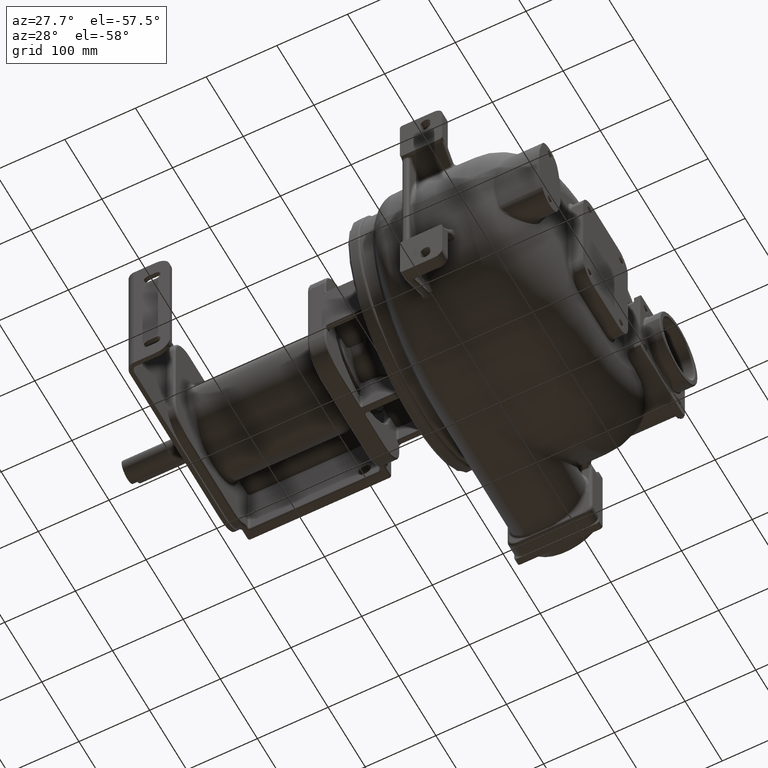
[diagram: clean part render]
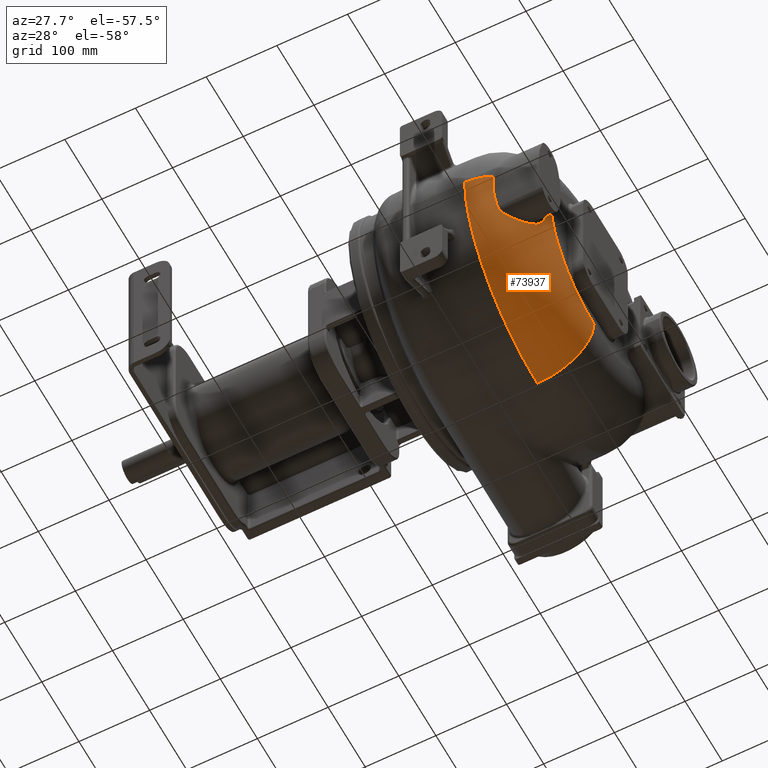
[diagram: same view with one face highlighted and labeled with its STEP entity id]
A machine part, auxiliary view. The second image highlights one B-rep face of the part: STEP entity #73937.
In plain terms, the highlighted toroidal blend (fillet) surface has major radius 116 mm and minor (blend) radius 80 mm.
Its self-contained STEP definition (entity closure, byte-faithful):
#21613=CARTESIAN_POINT('',(5.E1,2.07E2,-1.23E2));
#21614=DIRECTION('',(0.E0,1.E0,0.E0));
#21615=DIRECTION('',(1.E0,0.E0,0.E0));
#21616=AXIS2_PLACEMENT_3D('',#21613,#21614,#21615);
#21631=CARTESIAN_POINT('',(1.3E2,2.07E2,-7.E0));
#21632=DIRECTION('',(1.E0,0.E0,0.E0));
#21633=DIRECTION('',(0.E0,-1.E0,0.E0));
#21634=AXIS2_PLACEMENT_3D('',#21631,#21632,#21633);
#21704=CARTESIAN_POINT('',(5.E1,9.1E1,-7.E0));
#21705=DIRECTION('',(0.E0,0.E0,-1.E0));
#21706=DIRECTION('',(1.E0,0.E0,0.E0));
#21707=AXIS2_PLACEMENT_3D('',#21704,#21705,#21706);
#21709=CARTESIAN_POINT('',(5.E1,9.1E1,-7.E0));
#21710=DIRECTION('',(0.E0,0.E0,-1.E0));
#21711=DIRECTION('',(4.543358366778E-1,-8.908304819158E-1,0.E0));
#21712=AXIS2_PLACEMENT_3D('',#21709,#21710,#21711);
#21714=CARTESIAN_POINT('',(8.670701543075E1,2.914157496928E1,
-6.501645246094E1));
#21715=CARTESIAN_POINT('',(8.661662273888E1,2.882639051811E1,
-6.420071827394E1));
#21716=CARTESIAN_POINT('',(8.644287761704E1,2.821230472319E1,
-6.256663715477E1));
#21717=CARTESIAN_POINT('',(8.620365766661E1,2.733996422774E1,
-6.010926433028E1));
#21718=CARTESIAN_POINT('',(8.598597235908E1,2.651569812819E1,
-5.764544773710E1));
#21719=CARTESIAN_POINT('',(8.579003709320E1,2.573904832277E1,
-5.517539775021E1));
#21720=CARTESIAN_POINT('',(8.561608215289E1,2.500957024017E1,
-5.269915403584E1));
#21721=CARTESIAN_POINT('',(8.546439500092E1,2.432690895946E1,
-5.021672821328E1));
#21722=CARTESIAN_POINT('',(8.533521820968E1,2.369075187151E1,
-4.772813957707E1));
#21723=CARTESIAN_POINT('',(8.522852233630E1,2.310074867115E1,
-4.523357906725E1));
#21724=CARTESIAN_POINT('',(8.514435035639E1,2.255663242452E1,
-4.273320117209E1));
#21725=CARTESIAN_POINT('',(8.508276703704E1,2.205817683146E1,
-4.022703006857E1));
#21726=CARTESIAN_POINT('',(8.504386471154E1,2.160517528959E1,
-3.771476011627E1));
#21727=CARTESIAN_POINT('',(8.502781923528E1,2.119754383681E1,
-3.519610779950E1));
#21728=CARTESIAN_POINT('',(8.503470939250E1,2.083522014494E1,
-3.267075285451E1));
#21729=CARTESIAN_POINT('',(8.506434780851E1,2.051808688759E1,
-3.013836539653E1));
#21730=CARTESIAN_POINT('',(8.511665054046E1,2.024614889364E1,
-2.759856009930E1));
#21731=CARTESIAN_POINT('',(8.519156836682E1,2.001952589652E1,
-2.505113514582E1));
#21732=CARTESIAN_POINT('',(8.528907612696E1,1.983843885488E1,
-2.249614628798E1));
#21733=CARTESIAN_POINT('',(8.540922873612E1,1.970320176287E1,
-1.993364866578E1));
#21734=CARTESIAN_POINT('',(8.555190289615E1,1.961408609278E1,
-1.736351973639E1));
#21735=CARTESIAN_POINT('',(8.571681914174E1,1.957134323937E1,
-1.478547104774E1));
#21736=CARTESIAN_POINT('',(8.590378685638E1,1.957534563730E1,
-1.219923206470E1));
#21737=CARTESIAN_POINT('',(8.611263212483E1,1.962654129413E1,
-9.604700904399E0));
#21738=CARTESIAN_POINT('',(8.626639193262E1,1.969252145499E1,
-7.869054691170E0));
#21739=CARTESIAN_POINT('',(8.634686693422E1,1.973356144674E1,
-7.000000000020E0));
#21741=CARTESIAN_POINT('',(1.249646802072E2,7.551319595312E1,
-6.555046343615E1));
#21742=CARTESIAN_POINT('',(1.249102003775E2,7.544100137730E1,
-6.574774108755E1));
#21743=CARTESIAN_POINT('',(1.247990602610E2,7.529215256936E1,
-6.613910404735E1));
#21744=CARTESIAN_POINT('',(1.246257330685E2,7.505583322654E1,
-6.671665450129E1));
#21745=CARTESIAN_POINT('',(1.244456653861E2,7.480666929021E1,
-6.728494321833E1));
#21746=CARTESIAN_POINT('',(1.242587258309E2,7.454483374126E1,
-6.784412387759E1));
#21747=CARTESIAN_POINT('',(1.240647644373E2,7.427044602647E1,
-6.839433081504E1));
#21748=CARTESIAN_POINT('',(1.238636170887E2,7.398358306360E1,
-6.893565694842E1));
#21749=CARTESIAN_POINT('',(1.236551011725E2,7.368427663283E1,
-6.946817053480E1));
#21750=CARTESIAN_POINT('',(1.234390311162E2,7.337252731231E1,
-6.999185631608E1));
#21751=CARTESIAN_POINT('',(1.232151137621E2,7.304822955122E1,
-7.050701339576E1));
#21752=CARTESIAN_POINT('',(1.229830086723E2,7.271121234665E1,
-7.101396548290E1));
#21753=CARTESIAN_POINT('',(1.227423572225E2,7.236126521676E1,
-7.151295156362E1));
#21754=CARTESIAN_POINT('',(1.224927760547E2,7.199813638777E1,
-7.200415111299E1));
#21755=CARTESIAN_POINT('',(1.222338705330E2,7.162155295544E1,
-7.248765435522E1));
#21756=CARTESIAN_POINT('',(1.219652245959E2,7.123120964804E1,
-7.296348716267E1));
#21757=CARTESIAN_POINT('',(1.216864114178E2,7.082678072061E1,
-7.343158101558E1));
#21758=CARTESIAN_POINT('',(1.213969587430E2,7.040789022910E1,
-7.389187152160E1));
#21759=CARTESIAN_POINT('',(1.210962718257E2,6.997403578527E1,
-7.434446066938E1));
#21760=CARTESIAN_POINT('',(1.207837468522E2,6.952470847522E1,
-7.478931927824E1));
#21761=CARTESIAN_POINT('',(1.204587589561E2,6.905938537769E1,
-7.522632800191E1));
#21762=CARTESIAN_POINT('',(1.201206640876E2,6.857753201864E1,
-7.565526950315E1));
#21763=CARTESIAN_POINT('',(1.197687963776E2,6.807859987273E1,
-7.607583231057E1));
#21764=CARTESIAN_POINT('',(1.194024662356E2,6.756202671882E1,
-7.648761115271E1));
#21765=CARTESIAN_POINT('',(1.190210213785E2,6.702731470371E1,
-7.689003194248E1));
#21766=CARTESIAN_POINT('',(1.186235415374E2,6.647364379860E1,
-7.728273916530E1));
#21767=CARTESIAN_POINT('',(1.182089394984E2,6.590001745100E1,
-7.766539406436E1));
#21768=CARTESIAN_POINT('',(1.177761739805E2,6.530554530873E1,
-7.803743631846E1));
#21769=CARTESIAN_POINT('',(1.173240636116E2,6.468919848251E1,
-7.839823292679E1));
#21770=CARTESIAN_POINT('',(1.168527408713E2,6.405177363213E1,
-7.874602603245E1));
#21771=CARTESIAN_POINT('',(1.163626134271E2,6.339442668717E1,
-7.907902269925E1));
#21772=CARTESIAN_POINT('',(1.158541477228E2,6.271837061304E1,
-7.939556394228E1));
#21773=CARTESIAN_POINT('',(1.153278674225E2,6.202486053021E1,
-7.969411913184E1));
#21774=CARTESIAN_POINT('',(1.147842954486E2,6.131511853680E1,
-7.997332536085E1));
#21775=CARTESIAN_POINT('',(1.142240337676E2,6.059044345478E1,
-8.023194612256E1));
#21776=CARTESIAN_POINT('',(1.136478722548E2,5.985233779267E1,
-8.046884578012E1));
#21777=CARTESIAN_POINT('',(1.130558912928E2,5.910136449398E1,
-8.068331882067E1));
#21778=CARTESIAN_POINT('',(1.124480115864E2,5.833787902105E1,
-8.087472641859E1));
#21779=CARTESIAN_POINT('',(1.118242385257E2,5.756234897525E1,
-8.104242629733E1));
#21780=CARTESIAN_POINT('',(1.111846477921E2,5.677528868554E1,
-8.118570487984E1));
#21781=CARTESIAN_POINT('',(1.105294271288E2,5.597729054728E1,
-8.130375048002E1));
#21782=CARTESIAN_POINT('',(1.098588018118E2,5.516898912254E1,
-8.139580496947E1));
#21783=CARTESIAN_POINT('',(1.091730580550E2,5.435107698848E1,
-8.146113316231E1));
#21784=CARTESIAN_POINT('',(1.084729614404E2,5.352479624563E1,
-8.149903193670E1));
#21785=CARTESIAN_POINT('',(1.077593348886E2,5.269141235127E1,
-8.150891069582E1));
#21786=CARTESIAN_POINT('',(1.070330608607E2,5.185223531428E1,
-8.149032890436E1));
#21787=CARTESIAN_POINT('',(1.062950960848E2,5.100848658746E1,
-8.144269412779E1));
#21788=CARTESIAN_POINT('',(1.055464671814E2,5.016139024097E1,
-8.136547239030E1));
#21789=CARTESIAN_POINT('',(1.047882063096E2,4.931213699127E1,
-8.125824774386E1));
#21790=CARTESIAN_POINT('',(1.040220726916E2,4.846267145830E1,
-8.112084628519E1));
#21791=CARTESIAN_POINT('',(1.032499368280E2,4.761499001913E1,
-8.095335170395E1));
#21792=CARTESIAN_POINT('',(1.024736796191E2,4.677100874551E1,
-8.075602895099E1));
#21793=CARTESIAN_POINT('',(1.016952737230E2,4.593245903396E1,
-8.052892349829E1));
#21794=CARTESIAN_POINT('',(1.009165488266E2,4.510086748346E1,
-8.027226091991E1));
#21795=CARTESIAN_POINT('',(1.001401847833E2,4.427859966288E1,
-7.998676493510E1));
#21796=CARTESIAN_POINT('',(9.936942624707E1,4.346855131515E1,
-7.967376402607E1));
#21797=CARTESIAN_POINT('',(9.860725901363E1,4.267323693189E1,
-7.933481842523E1));
#21798=CARTESIAN_POINT('',(9.785594908560E1,4.189406472998E1,
-7.897080212757E1));
#21799=CARTESIAN_POINT('',(9.711756574078E1,4.113227430074E1,
-7.858283259151E1));
#21800=CARTESIAN_POINT('',(9.639566126456E1,4.039062464473E1,
-7.817314051353E1));
#21801=CARTESIAN_POINT('',(9.569413203717E1,3.967230891899E1,
-7.774494303846E1));
#21802=CARTESIAN_POINT('',(9.501550956563E1,3.897888105732E1,
-7.730055196871E1));
#21803=CARTESIAN_POINT('',(9.436081034641E1,3.831019129477E1,
-7.684104043234E1));
#21804=CARTESIAN_POINT('',(9.373165841633E1,3.766692824433E1,
-7.636839855356E1));
#21805=CARTESIAN_POINT('',(9.313086985502E1,3.705114916138E1,
-7.588604892863E1));
#21806=CARTESIAN_POINT('',(9.256075859046E1,3.646461919132E1,
-7.539785733771E1));
#21807=CARTESIAN_POINT('',(9.202131451195E1,3.590632765542E1,
-7.490477289553E1));
#21808=CARTESIAN_POINT('',(9.151191654857E1,3.537486894411E1,
-7.440746469455E1));
#21809=CARTESIAN_POINT('',(9.103287069138E1,3.487003392507E1,
-7.390783697250E1));
#21810=CARTESIAN_POINT('',(9.058469520386E1,3.439213443907E1,
-7.340867965850E1));
#21811=CARTESIAN_POINT('',(9.016728207634E1,3.394091660251E1,
-7.291225897913E1));
#21812=CARTESIAN_POINT('',(8.977949122976E1,3.351466998904E1,
-7.241849242126E1));
#21813=CARTESIAN_POINT('',(8.941998274962E1,3.311175001117E1,
-7.192745581503E1));
#21814=CARTESIAN_POINT('',(8.908757484208E1,3.273083833830E1,
-7.143954613211E1));
#21815=CARTESIAN_POINT('',(8.878111444236E1,3.237079955833E1,
-7.095536572722E1));
#21816=CARTESIAN_POINT('',(8.849917255656E1,3.203033103358E1,
-7.047527646030E1));
#21817=CARTESIAN_POINT('',(8.824126609745E1,3.170891125596E1,
-7.000006833109E1));
#21818=CARTESIAN_POINT('',(8.800684767922E1,3.140603384394E1,
-6.953055372740E1));
#21819=CARTESIAN_POINT('',(8.779520541273E1,3.112117899662E1,
-6.906765779644E1));
#21820=CARTESIAN_POINT('',(8.760454284639E1,3.085242125220E1,
-6.860991831048E1));
#21821=CARTESIAN_POINT('',(8.743316326945E1,3.059782767447E1,
-6.815544490559E1));
#21822=CARTESIAN_POINT('',(8.727950185323E1,3.035537933903E1,
-6.770165512889E1));
#21823=CARTESIAN_POINT('',(8.714287413285E1,3.012441260466E1,
-6.724828701929E1));
#21824=CARTESIAN_POINT('',(8.702300243515E1,2.990496865166E1,
-6.679642011876E1));
#21825=CARTESIAN_POINT('',(8.691953468849E1,2.969689924127E1,
-6.634666694825E1));
#21826=CARTESIAN_POINT('',(8.683215955358E1,2.950009617051E1,
-6.589964661869E1));
#21827=CARTESIAN_POINT('',(8.676057110064E1,2.931441823618E1,
-6.545584667704E1));
#21828=CARTESIAN_POINT('',(8.672317914059E1,2.919799549378E1,
-6.516248976558E1));
#21829=CARTESIAN_POINT('',(8.670701543075E1,2.914157496928E1,
-6.501645246094E1));
#21831=CARTESIAN_POINT('',(1.297080140062E2,8.417120045802E1,
-6.999999999999E0));
#21832=CARTESIAN_POINT('',(1.297101625965E2,8.419627974095E1,
-7.539575175379E0));
#21833=CARTESIAN_POINT('',(1.297133586968E2,8.424095212246E1,
-8.619145047796E0));
#21834=CARTESIAN_POINT('',(1.297149200473E2,8.429154351389E1,
-1.024225099229E1));
#21835=CARTESIAN_POINT('',(1.297132587766E2,8.432557524527E1,
-1.186650817281E1));
#21836=CARTESIAN_POINT('',(1.297083489387E2,8.434301716983E1,
-1.349067483687E1));
#21837=CARTESIAN_POINT('',(1.297001212943E2,8.434386738308E1,
-1.511318317243E1));
#21838=CARTESIAN_POINT('',(1.296884684074E2,8.432818606058E1,
-1.673245375891E1));
#21839=CARTESIAN_POINT('',(1.296732404269E2,8.429606949917E1,
-1.834738481827E1));
#21840=CARTESIAN_POINT('',(1.296542428171E2,8.424762829626E1,
-1.995732096217E1));
#21841=CARTESIAN_POINT('',(1.296312433225E2,8.418299767898E1,
-2.156150143469E1));
#21842=CARTESIAN_POINT('',(1.296039737933E2,8.410232800847E1,
-2.315917925488E1));
#21843=CARTESIAN_POINT('',(1.295721347641E2,8.400579020948E1,
-2.474958104383E1));
#21844=CARTESIAN_POINT('',(1.295353998046E2,8.389358055563E1,
-2.633192926828E1));
#21845=CARTESIAN_POINT('',(1.294934207553E2,8.376592095276E1,
-2.790542465123E1));
#21846=CARTESIAN_POINT('',(1.294458173652E2,8.362301182544E1,
-2.946970306654E1));
#21847=CARTESIAN_POINT('',(1.293921890143E2,8.346506139077E1,
-3.102440497322E1));
#21848=CARTESIAN_POINT('',(1.293321205160E2,8.329229086723E1,
-3.256913093602E1));
#21849=CARTESIAN_POINT('',(1.292651812092E2,8.310491951955E1,
-3.410356024943E1));
#21850=CARTESIAN_POINT('',(1.291909181409E2,8.290314260220E1,
-3.562762439420E1));
#21851=CARTESIAN_POINT('',(1.291088683226E2,8.268715723620E1,
-3.714120970075E1));
#21852=CARTESIAN_POINT('',(1.290185632090E2,8.245716578837E1,
-3.864415383427E1));
#21853=CARTESIAN_POINT('',(1.289195145248E2,8.221333917775E1,
-4.013651827721E1));
#21854=CARTESIAN_POINT('',(1.288112163156E2,8.195582339721E1,
-4.161848452963E1));
#21855=CARTESIAN_POINT('',(1.286931562672E2,8.168475945851E1,
-4.309016490085E1));
#21856=CARTESIAN_POINT('',(1.285648088908E2,8.140026954191E1,
-4.455172943039E1));
#21857=CARTESIAN_POINT('',(1.284256226688E2,8.110243826603E1,
-4.600353156540E1));
#21858=CARTESIAN_POINT('',(1.282750351374E2,8.079133654671E1,
-4.744585993908E1));
#21859=CARTESIAN_POINT('',(1.281124660809E2,8.046701208810E1,
-4.887903122310E1));
#21860=CARTESIAN_POINT('',(1.279372938950E2,8.012945966366E1,
-5.030358266860E1));
#21861=CARTESIAN_POINT('',(1.277488739462E2,7.977864711233E1,
-5.171999806120E1));
#21862=CARTESIAN_POINT('',(1.275465390004E2,7.941452817517E1,
-5.312873091842E1));
#21863=CARTESIAN_POINT('',(1.273295982251E2,7.903705310697E1,
-5.453022070531E1));
#21864=CARTESIAN_POINT('',(1.270973459959E2,7.864616372136E1,
-5.592479014750E1));
#21865=CARTESIAN_POINT('',(1.268489604777E2,7.824165528696E1,
-5.731326806929E1));
#21866=CARTESIAN_POINT('',(1.265835142995E2,7.782320660395E1,
-5.869670265477E1));
#21867=CARTESIAN_POINT('',(1.263000640082E2,7.739053659983E1,
-6.007583002096E1));
#21868=CARTESIAN_POINT('',(1.259977504288E2,7.694355903301E1,
-6.145074633975E1));
#21869=CARTESIAN_POINT('',(1.256756584533E2,7.648213305591E1,
-6.282159883409E1));
#21870=CARTESIAN_POINT('',(1.253328756957E2,7.600618973468E1,
-6.418839985489E1));
#21871=CARTESIAN_POINT('',(1.250899191735E2,7.567915135755E1,
-6.509692342497E1));
#21872=CARTESIAN_POINT('',(1.249646802072E2,7.551319595312E1,
-6.555046343615E1));
#33528=CARTESIAN_POINT('',(5.E1,2.07E2,-7.E0));
#33529=DIRECTION('',(1.E0,0.E0,0.E0));
#33530=DIRECTION('',(0.E0,-1.E0,0.E0));
#33531=AXIS2_PLACEMENT_3D('',#33528,#33529,#33530);
#38387=CARTESIAN_POINT('',(1.3E2,2.07E2,-1.23E2));
#38389=VERTEX_POINT('',#38387);
#38391=CARTESIAN_POINT('',(5.E1,2.07E2,-2.03E2));
#38393=VERTEX_POINT('',#38391);
#38395=CARTESIAN_POINT('',(1.3E2,9.1E1,-7.E0));
#38396=VERTEX_POINT('',#38395);
#38397=CARTESIAN_POINT('',(5.E1,1.1E1,-7.E0));
#38398=VERTEX_POINT('',#38397);
#38531=CARTESIAN_POINT('',(1.297080140062E2,8.417120045802E1,-7.E0));
#38532=VERTEX_POINT('',#38531);
#39114=VERTEX_POINT('',#21714);
#39115=VERTEX_POINT('',#21739);
#39122=VERTEX_POINT('',#21872);
#73916=CARTESIAN_POINT('',(5.E1,2.07E2,-7.E0));
#73917=DIRECTION('',(1.E0,0.E0,0.E0));
#73918=DIRECTION('',(0.E0,-9.999925103513E-1,3.870302494366E-3));
#73919=AXIS2_PLACEMENT_3D('',#73916,#73917,#73918);
#73920=TOROIDAL_SURFACE('',#73919,1.16E2,8.E1);
#73922=ORIENTED_EDGE('',*,*,#73921,.F.);
#73923=ORIENTED_EDGE('',*,*,#73883,.T.);
#73924=ORIENTED_EDGE('',*,*,#73870,.T.);
#73926=ORIENTED_EDGE('',*,*,#73925,.F.);
#73928=ORIENTED_EDGE('',*,*,#73927,.F.);
#73930=ORIENTED_EDGE('',*,*,#73929,.F.);
#73932=ORIENTED_EDGE('',*,*,#73931,.F.);
#73934=ORIENTED_EDGE('',*,*,#73933,.F.);
#73935=EDGE_LOOP('',(#73922,#73923,#73924,#73926,#73928,#73930,#73932,#73934));
#73936=FACE_OUTER_BOUND('',#73935,.F.);
#73937=ADVANCED_FACE('',(#73936),#73920,.T.);
#21617=CIRCLE('',#21616,8.E1);
#21635=CIRCLE('',#21634,1.16E2);
#21708=CIRCLE('',#21707,8.E1);
#21713=CIRCLE('',#21712,8.E1);
#21740=B_SPLINE_CURVE_WITH_KNOTS('',3,(#21714,#21715,#21716,#21717,#21718,
#21719,#21720,#21721,#21722,#21723,#21724,#21725,#21726,#21727,#21728,#21729,
#21730,#21731,#21732,#21733,#21734,#21735,#21736,#21737,#21738,#21739),
.UNSPECIFIED.,.F.,.F.,(4,1,1,1,1,1,1,1,1,1,1,1,1,1,1,1,1,1,1,1,1,1,1,4),(0.E0,
4.347826086957E-2,8.695652173913E-2,1.304347826087E-1,1.739130434783E-1,
2.173913043478E-1,2.608695652174E-1,3.043478260870E-1,3.478260869565E-1,
3.913043478261E-1,4.347826086957E-1,4.782608695652E-1,5.217391304348E-1,
5.652173913043E-1,6.086956521739E-1,6.521739130435E-1,6.956521739130E-1,
7.391304347826E-1,7.826086956522E-1,8.260869565217E-1,8.695652173913E-1,
9.130434782609E-1,9.565217391304E-1,1.E0),.UNSPECIFIED.);
#21830=B_SPLINE_CURVE_WITH_KNOTS('',3,(#21741,#21742,#21743,#21744,#21745,
#21746,#21747,#21748,#21749,#21750,#21751,#21752,#21753,#21754,#21755,#21756,
#21757,#21758,#21759,#21760,#21761,#21762,#21763,#21764,#21765,#21766,#21767,
#21768,#21769,#21770,#21771,#21772,#21773,#21774,#21775,#21776,#21777,#21778,
#21779,#21780,#21781,#21782,#21783,#21784,#21785,#21786,#21787,#21788,#21789,
#21790,#21791,#21792,#21793,#21794,#21795,#21796,#21797,#21798,#21799,#21800,
#21801,#21802,#21803,#21804,#21805,#21806,#21807,#21808,#21809,#21810,#21811,
#21812,#21813,#21814,#21815,#21816,#21817,#21818,#21819,#21820,#21821,#21822,
#21823,#21824,#21825,#21826,#21827,#21828,#21829),.UNSPECIFIED.,.F.,.F.,(4,1,1,
1,1,1,1,1,1,1,1,1,1,1,1,1,1,1,1,1,1,1,1,1,1,1,1,1,1,1,1,1,1,1,1,1,1,1,1,1,1,1,1,
1,1,1,1,1,1,1,1,1,1,1,1,1,1,1,1,1,1,1,1,1,1,1,1,1,1,1,1,1,1,1,1,1,1,1,1,1,1,1,1,
1,1,1,4),(0.E0,1.162790697674E-2,2.325581395349E-2,3.488372093023E-2,
4.651162790698E-2,5.813953488372E-2,6.976744186047E-2,8.139534883721E-2,
9.302325581395E-2,1.046511627907E-1,1.162790697674E-1,1.279069767442E-1,
1.395348837209E-1,1.511627906977E-1,1.627906976744E-1,1.744186046512E-1,
1.860465116279E-1,1.976744186047E-1,2.093023255814E-1,2.209302325581E-1,
2.325581395349E-1,2.441860465116E-1,2.558139534884E-1,2.674418604651E-1,
2.790697674419E-1,2.906976744186E-1,3.023255813953E-1,3.139534883721E-1,
3.255813953488E-1,3.372093023256E-1,3.488372093023E-1,3.604651162791E-1,
3.720930232558E-1,3.837209302326E-1,3.953488372093E-1,4.069767441860E-1,
4.186046511628E-1,4.302325581395E-1,4.418604651163E-1,4.534883720930E-1,
4.651162790698E-1,4.767441860465E-1,4.883720930233E-1,5.E-1,5.116279069767E-1,
5.232558139535E-1,5.348837209302E-1,5.465116279070E-1,5.581395348837E-1,
5.697674418605E-1,5.813953488372E-1,5.930232558140E-1,6.046511627907E-1,
6.162790697674E-1,6.279069767442E-1,6.395348837209E-1,6.511627906977E-1,
6.627906976744E-1,6.744186046512E-1,6.860465116279E-1,6.976744186047E-1,
7.093023255814E-1,7.209302325581E-1,7.325581395349E-1,7.441860465116E-1,
7.558139534884E-1,7.674418604651E-1,7.790697674419E-1,7.906976744186E-1,
8.023255813953E-1,8.139534883721E-1,8.255813953488E-1,8.372093023256E-1,
8.488372093023E-1,8.604651162791E-1,8.720930232558E-1,8.837209302326E-1,
8.953488372093E-1,9.069767441860E-1,9.186046511628E-1,9.302325581395E-1,
9.418604651163E-1,9.534883720930E-1,9.651162790698E-1,9.767441860465E-1,
9.883720930233E-1,1.E0),.UNSPECIFIED.);
#21873=B_SPLINE_CURVE_WITH_KNOTS('',3,(#21831,#21832,#21833,#21834,#21835,
#21836,#21837,#21838,#21839,#21840,#21841,#21842,#21843,#21844,#21845,#21846,
#21847,#21848,#21849,#21850,#21851,#21852,#21853,#21854,#21855,#21856,#21857,
#21858,#21859,#21860,#21861,#21862,#21863,#21864,#21865,#21866,#21867,#21868,
#21869,#21870,#21871,#21872),.UNSPECIFIED.,.F.,.F.,(4,1,1,1,1,1,1,1,1,1,1,1,1,1,
1,1,1,1,1,1,1,1,1,1,1,1,1,1,1,1,1,1,1,1,1,1,1,1,1,4),(0.E0,2.564102564103E-2,
5.128205128205E-2,7.692307692308E-2,1.025641025641E-1,1.282051282051E-1,
1.538461538462E-1,1.794871794872E-1,2.051282051282E-1,2.307692307692E-1,
2.564102564103E-1,2.820512820513E-1,3.076923076923E-1,3.333333333333E-1,
3.589743589744E-1,3.846153846154E-1,4.102564102564E-1,4.358974358974E-1,
4.615384615385E-1,4.871794871795E-1,5.128205128205E-1,5.384615384615E-1,
5.641025641026E-1,5.897435897436E-1,6.153846153846E-1,6.410256410256E-1,
6.666666666667E-1,6.923076923077E-1,7.179487179487E-1,7.435897435897E-1,
7.692307692308E-1,7.948717948718E-1,8.205128205128E-1,8.461538461538E-1,
8.717948717949E-1,8.974358974359E-1,9.230769230769E-1,9.487179487179E-1,
9.743589743590E-1,1.E0),.UNSPECIFIED.);
#33532=CIRCLE('',#33531,1.96E2);
#73870=EDGE_CURVE('',#38389,#38393,#21617,.T.);
#73883=EDGE_CURVE('',#38396,#38389,#21635,.T.);
#73921=EDGE_CURVE('',#38396,#38532,#21708,.T.);
#73925=EDGE_CURVE('',#38398,#38393,#33532,.T.);
#73927=EDGE_CURVE('',#39115,#38398,#21713,.T.);
#73929=EDGE_CURVE('',#39114,#39115,#21740,.T.);
#73931=EDGE_CURVE('',#39122,#39114,#21830,.T.);
#73933=EDGE_CURVE('',#38532,#39122,#21873,.T.);